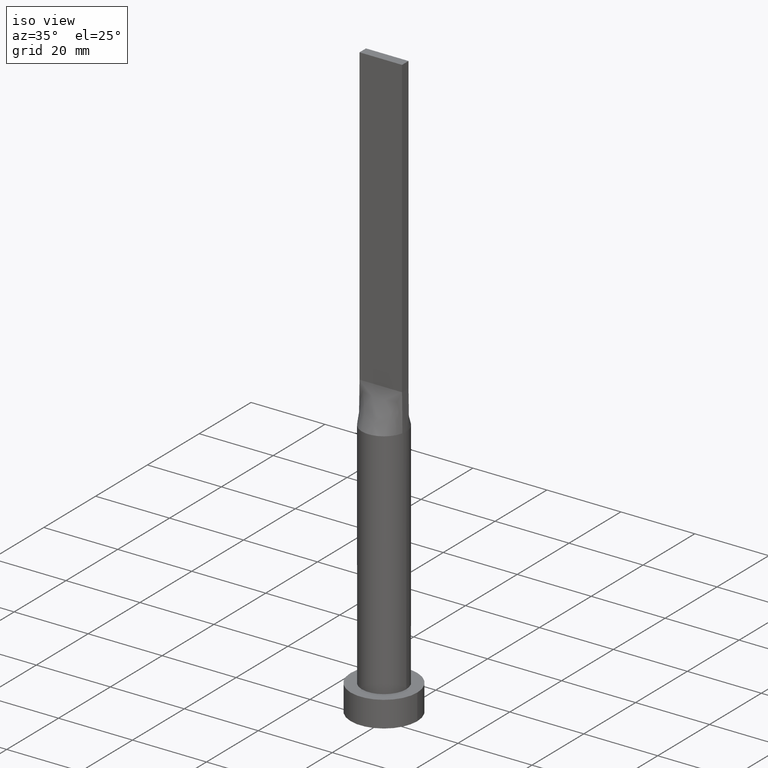
[diagram: clean part render]
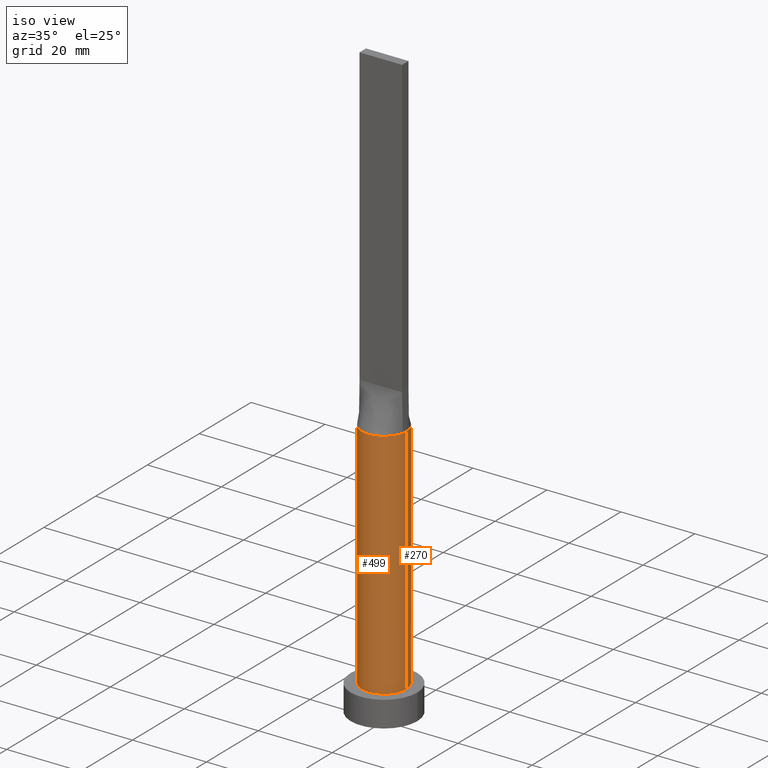
[diagram: same view with one multi-face feature highlighted, each face labeled with its STEP entity id]
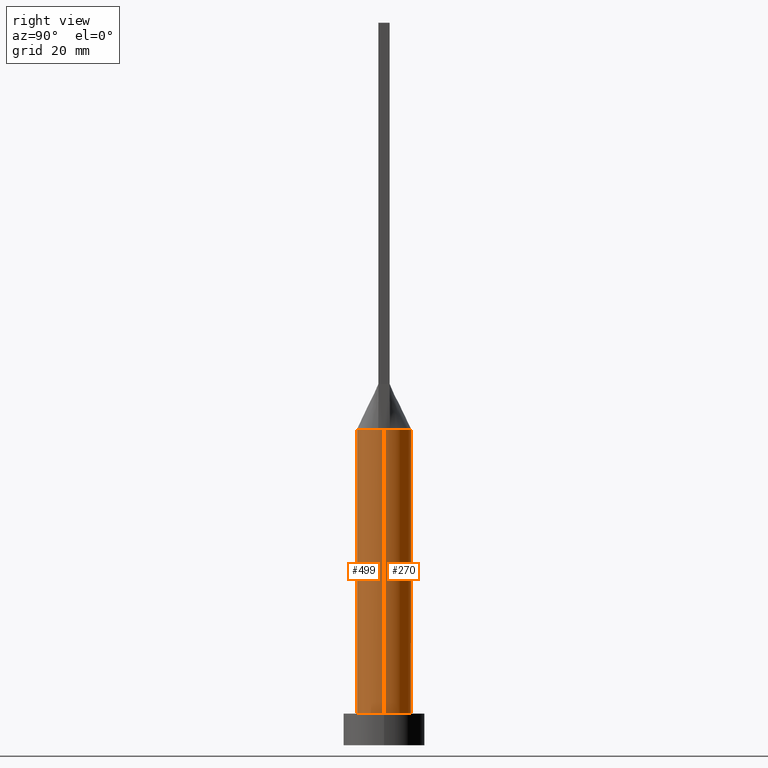
[diagram: same view with one multi-face feature highlighted, each face labeled with its STEP entity id]
A machine part, iso view. The highlighted faces form ONE feature: a constant-radius fillet chain: 2 tangent blend faces with common blend radius 6 mm. The faces share edges in the B-rep.
A second angle (right view) of the same feature is appended — it is thin or edge-on in the first view.
Their STEP definitions:
[1] entity #270 (Cylinder):
#1 = CARTESIAN_POINT ( 'NONE',  ( -0.4029827085191223790, 5.999999999999998224, 70.00000000000000000 ) ) ;
#4 = CARTESIAN_POINT ( 'NONE',  ( -4.659826596530312948, 3.842755878357679844, 69.99999999999998579 ) ) ;
#6 = CARTESIAN_POINT ( 'NONE',  ( -5.038190104264874236, 3.311355329404293446, 70.00000000000001421 ) ) ;
#15 = CARTESIAN_POINT ( 'NONE',  ( -6.000000000000000888, -3.688698462745542764E-16, 70.00000000000000000 ) ) ;
#17 = CARTESIAN_POINT ( 'NONE',  ( 0.000000000000000000, 0.000000000000000000, 7.000000000000000000 ) ) ;
#18 = ORIENTED_EDGE ( 'NONE', *, *, #288, .F. ) ;
#21 = CARTESIAN_POINT ( 'NONE',  ( 6.000000000000000888, 7.347880794884120722E-16, 70.00000000000000000 ) ) ;
#30 = DIRECTION ( 'NONE',  ( -0.000000000000000000, -0.000000000000000000, -1.000000000000000000 ) ) ;
#43 = VECTOR ( 'NONE', #482, 1000.000000000000000 ) ;
#52 = CARTESIAN_POINT ( 'NONE',  ( 0.000000000000000000, 0.000000000000000000, 70.00000000000000000 ) ) ;
#56 = CARTESIAN_POINT ( 'NONE',  ( 1.587717880441007479, 5.799853445840305710, 69.99999999999998579 ) ) ;
#58 = CARTESIAN_POINT ( 'NONE',  ( -5.863058287509749888, 1.274577880478287017, 70.00000000000000000 ) ) ;
#72 = FACE_OUTER_BOUND ( 'NONE', #562, .T. ) ;
#90 = VERTEX_POINT ( 'NONE', #106 ) ;
#102 = CARTESIAN_POINT ( 'NONE',  ( 5.586898165904734093, 2.266054396544147309, 70.00000000000000000 ) ) ;
#106 = CARTESIAN_POINT ( 'NONE',  ( 6.000000000000000888, 7.347880794884120722E-16, 7.000000000000000000 ) ) ;
#112 = LINE ( 'NONE', #21, #43 ) ;
#124 = CIRCLE ( 'NONE', #452, 6.000000000000000888 ) ;
#127 = CARTESIAN_POINT ( 'NONE',  ( 5.863058183536806744, 1.274577865986262326, 70.00000000000000000 ) ) ;
#146 = CARTESIAN_POINT ( 'NONE',  ( -5.586898165904732316, 2.266054396544148197, 70.00000000000001421 ) ) ;
#149 = CARTESIAN_POINT ( 'NONE',  ( 3.037647739454305995, 5.231880992812856235, 70.00000000000001421 ) ) ;
#153 = VERTEX_POINT ( 'NONE', #127 ) ;
#168 = ORIENTED_EDGE ( 'NONE', *, *, #400, .F. ) ;
#174 = DIRECTION ( 'NONE',  ( 1.000000000000000000, 0.000000000000000000, 0.000000000000000000 ) ) ;
#191 = CARTESIAN_POINT ( 'NONE',  ( -5.863058287509749888, 1.274577880478287017, 70.00000000000000000 ) ) ;
#192 = EDGE_CURVE ( 'NONE', #464, #153, #224, .T. ) ;
#202 = DIRECTION ( 'NONE',  ( -1.000000000000000000, 0.000000000000000000, 0.000000000000000000 ) ) ;
#215 = CARTESIAN_POINT ( 'NONE',  ( -6.000000000000000888, 0.000000000000000000, 7.000000000000000000 ) ) ;
#217 = ORIENTED_EDGE ( 'NONE', *, *, #547, .T. ) ;
#220 = CARTESIAN_POINT ( 'NONE',  ( 0.000000000000000000, 0.000000000000000000, 70.00000000000000000 ) ) ;
#222 = DIRECTION ( 'NONE',  ( 0.000000000000000000, 0.000000000000000000, 1.000000000000000000 ) ) ;
#224 = CIRCLE ( 'NONE', #241, 6.000000000000000888 ) ;
#231 = DIRECTION ( 'NONE',  ( 1.000000000000000000, 0.000000000000000000, 0.000000000000000000 ) ) ;
#240 = CARTESIAN_POINT ( 'NONE',  ( 1.966519853258819062, 5.681792876789066860, 70.00000000000000000 ) ) ;
#241 = AXIS2_PLACEMENT_3D ( 'NONE', #220, #222, #174 ) ;
#249 = DIRECTION ( 'NONE',  ( 0.000000000000000000, 0.000000000000000000, 1.000000000000000000 ) ) ;
#250 = DIRECTION ( 'NONE',  ( -0.000000000000000000, -0.000000000000000000, -1.000000000000000000 ) ) ;
#251 = AXIS2_PLACEMENT_3D ( 'NONE', #52, #514, #231 ) ;
#260 = EDGE_CURVE ( 'NONE', #464, #90, #112, .T. ) ;
#270 = ADVANCED_FACE ( 'NONE', ( #72 ), #532, .T. ) ;
#279 = CARTESIAN_POINT ( 'NONE',  ( 4.659826596530313836, 3.842755878357678068, 70.00000000000001421 ) ) ;
#283 = VERTEX_POINT ( 'NONE', #215 ) ;
#284 = CARTESIAN_POINT ( 'NONE',  ( -0.8058840496048931268, 5.959001506938069070, 70.00000000000000000 ) ) ;
#288 = EDGE_CURVE ( 'NONE', #553, #283, #303, .T. ) ;
#303 = LINE ( 'NONE', #487, #488 ) ;
#321 = CARTESIAN_POINT ( 'NONE',  ( 5.759267569818392829, 1.752014689090955590, 70.00000000000001421 ) ) ;
#326 = CARTESIAN_POINT ( 'NONE',  ( 5.863058183536806744, 1.274577865986262326, 70.00000000000000000 ) ) ;
#330 = CARTESIAN_POINT ( 'NONE',  ( 3.660567483996337579, 4.804269179125218336, 70.00000000000000000 ) ) ;
#331 = CIRCLE ( 'NONE', #251, 6.000000000000000888 ) ;
#352 = EDGE_CURVE ( 'NONE', #153, #413, #403, .T. ) ;
#363 = CARTESIAN_POINT ( 'NONE',  ( -1.587717880441007035, 5.799853445840308375, 69.99999999999998579 ) ) ;
#400 = EDGE_CURVE ( 'NONE', #413, #553, #331, .T. ) ;
#403 = B_SPLINE_CURVE_WITH_KNOTS ( 'NONE', 3,
 ( #326, #321, #102, #421, #279, #330, #149, #240, #56, #516, #520, #1, #284, #363, #418, #507, #416, #4, #6, #146, #453, #191 ),
 .UNSPECIFIED., .F., .F.,
 ( 4, 2, 2, 2, 2, 2, 2, 2, 2, 2, 4 ),
 ( 0.000000000000000000, 0.1249999999999999722, 0.2499999999999999445, 0.3749999999999999445, 0.4374999999999999445, 0.4999999999999998890, 0.5624999999999998890, 0.6249999999999998890, 0.7499999999999997780, 0.8749999999999998890, 1.000000000000000000 ),
 .UNSPECIFIED. ) ;
#413 = VERTEX_POINT ( 'NONE', #58 ) ;
#416 = CARTESIAN_POINT ( 'NONE',  ( -3.660567483996338023, 4.804269179125219225, 70.00000000000001421 ) ) ;
#418 = CARTESIAN_POINT ( 'NONE',  ( -1.966519853258818173, 5.681792876789067748, 70.00000000000002842 ) ) ;
#421 = CARTESIAN_POINT ( 'NONE',  ( 5.038190104264874236, 3.311355329404293002, 70.00000000000004263 ) ) ;
#428 = DIRECTION ( 'NONE',  ( 1.000000000000000000, 0.000000000000000000, 0.000000000000000000 ) ) ;
#436 = CARTESIAN_POINT ( 'NONE',  ( 0.000000000000000000, 0.000000000000000000, 70.00000000000000000 ) ) ;
#452 = AXIS2_PLACEMENT_3D ( 'NONE', #17, #249, #428 ) ;
#453 = CARTESIAN_POINT ( 'NONE',  ( -5.759267569818392829, 1.752014689090956256, 70.00000000000000000 ) ) ;
#462 = CARTESIAN_POINT ( 'NONE',  ( 6.000000000000000888, 6.923844231069229210E-17, 70.00000000000000000 ) ) ;
#464 = VERTEX_POINT ( 'NONE', #462 ) ;
#470 = ORIENTED_EDGE ( 'NONE', *, *, #260, .T. ) ;
#482 = DIRECTION ( 'NONE',  ( -0.000000000000000000, -0.000000000000000000, -1.000000000000000000 ) ) ;
#487 = CARTESIAN_POINT ( 'NONE',  ( -6.000000000000000888, 0.000000000000000000, 70.00000000000000000 ) ) ;
#488 = VECTOR ( 'NONE', #250, 1000.000000000000000 ) ;
#507 = CARTESIAN_POINT ( 'NONE',  ( -3.037647739454304663, 5.231880992812857123, 70.00000000000002842 ) ) ;
#514 = DIRECTION ( 'NONE',  ( 0.000000000000000000, 0.000000000000000000, 1.000000000000000000 ) ) ;
#516 = CARTESIAN_POINT ( 'NONE',  ( 0.8058840496048939039, 5.959001506938069070, 70.00000000000001421 ) ) ;
#520 = CARTESIAN_POINT ( 'NONE',  ( 0.4029827085191226566, 5.999999999999999112, 70.00000000000000000 ) ) ;
#529 = ORIENTED_EDGE ( 'NONE', *, *, #192, .F. ) ;
#532 = CYLINDRICAL_SURFACE ( 'NONE', #573, 6.000000000000000888 ) ;
#547 = EDGE_CURVE ( 'NONE', #90, #283, #124, .T. ) ;
#550 = ORIENTED_EDGE ( 'NONE', *, *, #352, .F. ) ;
#553 = VERTEX_POINT ( 'NONE', #15 ) ;
#562 = EDGE_LOOP ( 'NONE', ( #529, #470, #217, #18, #168, #550 ) ) ;
#573 = AXIS2_PLACEMENT_3D ( 'NONE', #436, #30, #202 ) ;
[2] entity #499 (Cylinder):
#15 = CARTESIAN_POINT ( 'NONE',  ( -6.000000000000000888, -3.688698462745542764E-16, 70.00000000000000000 ) ) ;
#19 = CARTESIAN_POINT ( 'NONE',  ( 0.000000000000000000, 0.000000000000000000, 7.000000000000000000 ) ) ;
#21 = CARTESIAN_POINT ( 'NONE',  ( 6.000000000000000888, 7.347880794884120722E-16, 70.00000000000000000 ) ) ;
#43 = VECTOR ( 'NONE', #482, 1000.000000000000000 ) ;
#50 = DIRECTION ( 'NONE',  ( 0.000000000000000000, 0.000000000000000000, 1.000000000000000000 ) ) ;
#60 = CARTESIAN_POINT ( 'NONE',  ( 5.863058287509796074, -1.274577880478293901, 70.00000000000000000 ) ) ;
#64 = EDGE_CURVE ( 'NONE', #447, #131, #66, .T. ) ;
#66 = CIRCLE ( 'NONE', #417, 6.000000000000000888 ) ;
#74 = DIRECTION ( 'NONE',  ( 1.000000000000000000, 0.000000000000000000, 0.000000000000000000 ) ) ;
#85 = EDGE_CURVE ( 'NONE', #283, #90, #261, .T. ) ;
#90 = VERTEX_POINT ( 'NONE', #106 ) ;
#95 = DIRECTION ( 'NONE',  ( -1.000000000000000000, 0.000000000000000000, 0.000000000000000000 ) ) ;
#98 = DIRECTION ( 'NONE',  ( 1.000000000000000000, 0.000000000000000000, 0.000000000000000000 ) ) ;
#106 = CARTESIAN_POINT ( 'NONE',  ( 6.000000000000000888, 7.347880794884120722E-16, 7.000000000000000000 ) ) ;
#112 = LINE ( 'NONE', #21, #43 ) ;
#118 = CARTESIAN_POINT ( 'NONE',  ( 0.000000000000000000, 0.000000000000000000, 70.00000000000000000 ) ) ;
#131 = VERTEX_POINT ( 'NONE', #60 ) ;
#134 = AXIS2_PLACEMENT_3D ( 'NONE', #141, #145, #95 ) ;
#141 = CARTESIAN_POINT ( 'NONE',  ( 0.000000000000000000, 0.000000000000000000, 70.00000000000000000 ) ) ;
#142 = AXIS2_PLACEMENT_3D ( 'NONE', #19, #292, #572 ) ;
#145 = DIRECTION ( 'NONE',  ( -0.000000000000000000, -0.000000000000000000, -1.000000000000000000 ) ) ;
#150 = CIRCLE ( 'NONE', #367, 6.000000000000000888 ) ;
#178 = ORIENTED_EDGE ( 'NONE', *, *, #85, .T. ) ;
#188 = CARTESIAN_POINT ( 'NONE',  ( 0.000000000000000000, 0.000000000000000000, 70.00000000000000000 ) ) ;
#215 = CARTESIAN_POINT ( 'NONE',  ( -6.000000000000000888, 0.000000000000000000, 7.000000000000000000 ) ) ;
#232 = ORIENTED_EDGE ( 'NONE', *, *, #356, .F. ) ;
#245 = EDGE_LOOP ( 'NONE', ( #450, #435, #347, #232, #404, #178 ) ) ;
#250 = DIRECTION ( 'NONE',  ( -0.000000000000000000, -0.000000000000000000, -1.000000000000000000 ) ) ;
#255 = EDGE_CURVE ( 'NONE', #131, #464, #290, .T. ) ;
#260 = EDGE_CURVE ( 'NONE', #464, #90, #112, .T. ) ;
#261 = CIRCLE ( 'NONE', #142, 6.000000000000000888 ) ;
#283 = VERTEX_POINT ( 'NONE', #215 ) ;
#288 = EDGE_CURVE ( 'NONE', #553, #283, #303, .T. ) ;
#290 = CIRCLE ( 'NONE', #527, 6.000000000000000888 ) ;
#292 = DIRECTION ( 'NONE',  ( 0.000000000000000000, 0.000000000000000000, 1.000000000000000000 ) ) ;
#303 = LINE ( 'NONE', #487, #488 ) ;
#306 = DIRECTION ( 'NONE',  ( 1.000000000000000000, -9.769962616701377556E-15, 0.000000000000000000 ) ) ;
#347 = ORIENTED_EDGE ( 'NONE', *, *, #64, .F. ) ;
#356 = EDGE_CURVE ( 'NONE', #553, #447, #150, .T. ) ;
#367 = AXIS2_PLACEMENT_3D ( 'NONE', #188, #50, #98 ) ;
#371 = FACE_OUTER_BOUND ( 'NONE', #245, .T. ) ;
#379 = DIRECTION ( 'NONE',  ( 0.000000000000000000, 0.000000000000000000, 1.000000000000000000 ) ) ;
#382 = CARTESIAN_POINT ( 'NONE',  ( 0.000000000000000000, 0.000000000000000000, 70.00000000000000000 ) ) ;
#404 = ORIENTED_EDGE ( 'NONE', *, *, #288, .T. ) ;
#417 = AXIS2_PLACEMENT_3D ( 'NONE', #382, #379, #74 ) ;
#435 = ORIENTED_EDGE ( 'NONE', *, *, #255, .F. ) ;
#447 = VERTEX_POINT ( 'NONE', #599 ) ;
#450 = ORIENTED_EDGE ( 'NONE', *, *, #260, .F. ) ;
#462 = CARTESIAN_POINT ( 'NONE',  ( 6.000000000000000888, 6.923844231069229210E-17, 70.00000000000000000 ) ) ;
#464 = VERTEX_POINT ( 'NONE', #462 ) ;
#482 = DIRECTION ( 'NONE',  ( -0.000000000000000000, -0.000000000000000000, -1.000000000000000000 ) ) ;
#487 = CARTESIAN_POINT ( 'NONE',  ( -6.000000000000000888, 0.000000000000000000, 70.00000000000000000 ) ) ;
#488 = VECTOR ( 'NONE', #250, 1000.000000000000000 ) ;
#499 = ADVANCED_FACE ( 'NONE', ( #371 ), #554, .T. ) ;
#527 = AXIS2_PLACEMENT_3D ( 'NONE', #118, #584, #306 ) ;
#553 = VERTEX_POINT ( 'NONE', #15 ) ;
#554 = CYLINDRICAL_SURFACE ( 'NONE', #134, 6.000000000000000888 ) ;
#572 = DIRECTION ( 'NONE',  ( 1.000000000000000000, 0.000000000000000000, 0.000000000000000000 ) ) ;
#584 = DIRECTION ( 'NONE',  ( 0.000000000000000000, 0.000000000000000000, 1.000000000000000000 ) ) ;
#599 = CARTESIAN_POINT ( 'NONE',  ( -5.863065408737084816, -1.274579424051652365, 70.00000000000000000 ) ) ;